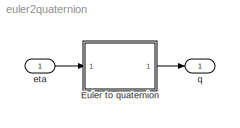
MODEL euler2quaternion
KIND model
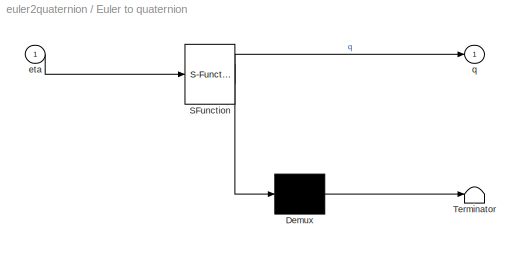
BLOCK [SubSystem] Euler to quaternion
  ErrorFcn = Stateflow.Translate.translate
  PermitHierarchicalResolution = ExplicitOnly
  Ports = [1, 1]
  RequestExecContextInheritance = off
  SFBlockType = MATLAB Function
  SID = 2
  TreatAsAtomicUnit = on
  Variant = off
BLOCK [Demux] Euler to quaternion/ Demux 
  Outputs = 1
  Ports = [1, 1]
  SID = 2::17
BLOCK [S-Function] Euler to quaternion/ SFunction 
  EnableBusSupport = on
  FunctionName = sf_sfun
  PortCounts = [1 2]
  Ports = [1, 2]
  SFunctionDeploymentMode = off
  SID = 2::16
  Tag = Stateflow S-Function euler2quaternion 5
BLOCK [Terminator] Euler to quaternion/ Terminator 
  SID = 2::18
BLOCK [Inport] Euler to quaternion/eta
  IconDisplay = Port number
  SID = 2::1
BLOCK [Outport] Euler to quaternion/q
  IconDisplay = Port number
  SID = 2::5
BLOCK [Inport] eta
  IconDisplay = Port number
  PortDimensions = 3
  SID = 9
BLOCK [Outport] q
  IconDisplay = Port number
  PortDimensions = 4
  SID = 10
LINE Euler to quaternion/ Demux :1 -> Euler to quaternion/ Terminator :1
LINE Euler to quaternion/ SFunction :1 -> Euler to quaternion/ Demux :1
LINE Euler to quaternion/ SFunction :2 -> Euler to quaternion/q:1
LINE Euler to quaternion/eta:1 -> Euler to quaternion/ SFunction :1
LINE Euler to quaternion:1 -> q:1
LINE eta:1 -> Euler to quaternion:1
CHART Euler to quaternion states=1 transitions=1
  STATE_LABEL 'eML_blk_kernel()'
